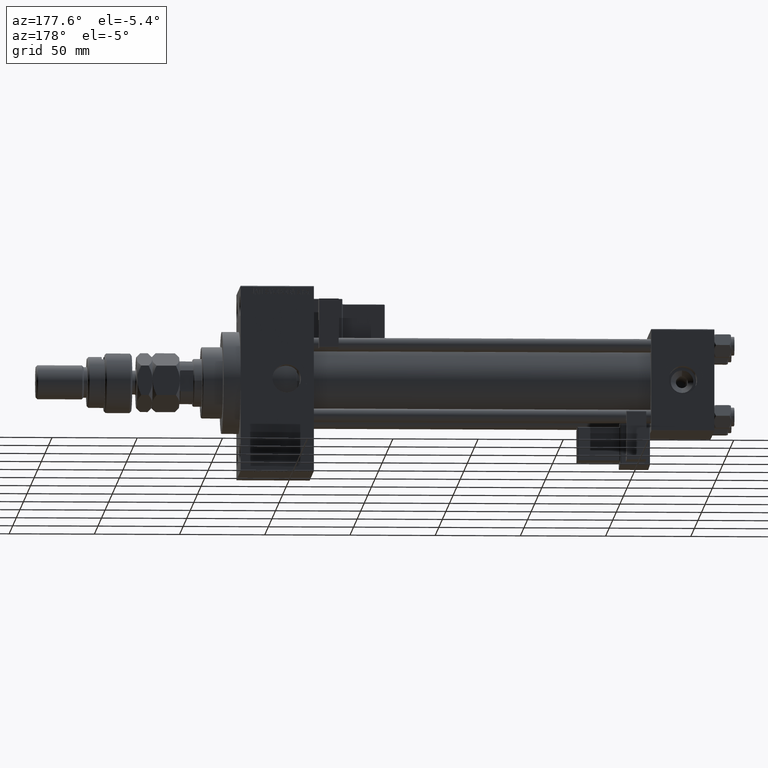
[diagram: clean part render]
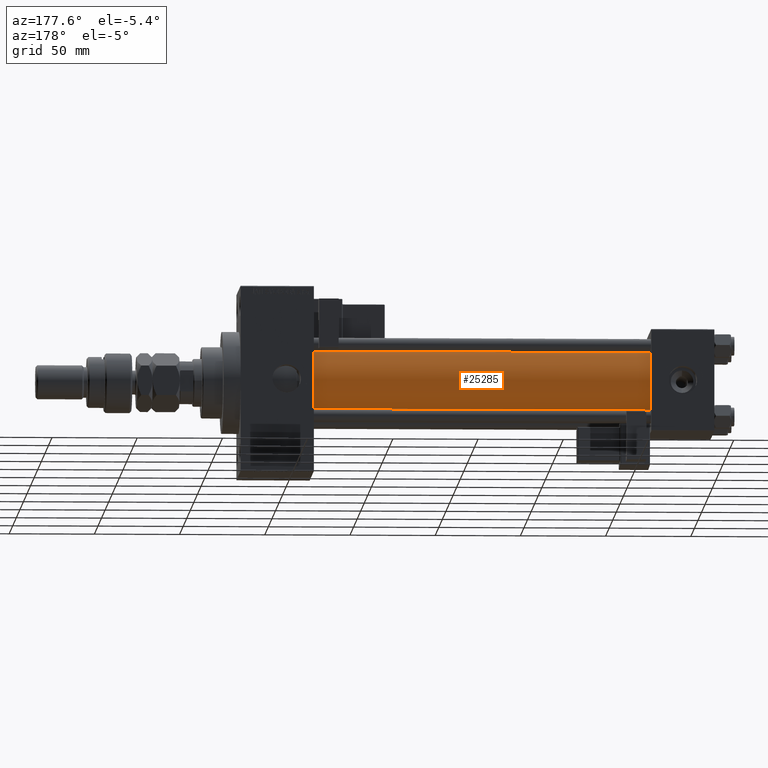
[diagram: same view with one face highlighted and labeled with its STEP entity id]
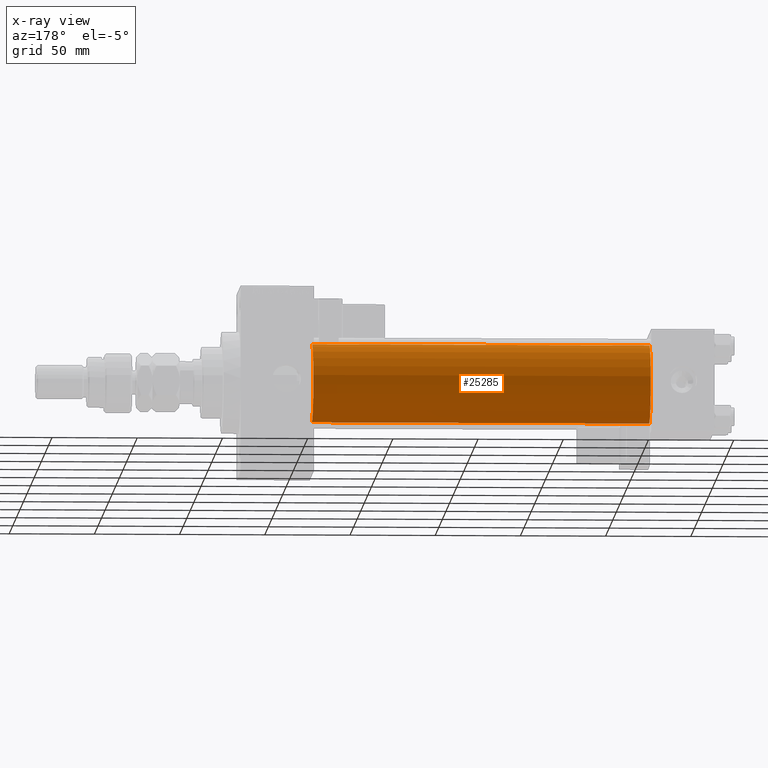
[diagram: x-ray of the same camera — body ghosted, the highlighted face saturated]
A machine part, auxiliary view. The second image highlights one B-rep face of the part: STEP entity #25285.
The next image is the same camera in x-ray: the body ghosted, the highlighted face saturated — about 0% of this face is hidden behind the body in this view.
In plain terms, the highlighted cylindrical surface (partial cylindrical patch) has radius 23 mm, axis along (-1, -0, -0).
Its self-contained STEP definition (entity closure, byte-faithful):
#2834 = EDGE_LOOP ( 'NONE', ( #35893, #15410, #26519, #19608 ) ) ;
#5850 = DIRECTION ( 'NONE',  ( -1.000000000000000000, -0.000000000000000000, -0.000000000000000000 ) ) ;
#7705 = CIRCLE ( 'NONE', #41034, 23.00000000000000000 ) ;
#9074 = CARTESIAN_POINT ( 'NONE',  ( 37.00000000000000711, 2.146024240737016609E-16, -23.00000000000000000 ) ) ;
#9772 = LINE ( 'NONE', #42755, #24658 ) ;
#10904 = CIRCLE ( 'NONE', #12661, 23.00000000000000000 ) ;
#11007 = CARTESIAN_POINT ( 'NONE',  ( 37.00000000000000711, -2.602085213965210642E-15, 23.00000000000000000 ) ) ;
#12124 = CYLINDRICAL_SURFACE ( 'NONE', #40105, 23.00000000000000000 ) ;
#12287 = CARTESIAN_POINT ( 'NONE',  ( 235.0000000000000284, 2.146024240737016609E-16, -23.00000000000000000 ) ) ;
#12661 = AXIS2_PLACEMENT_3D ( 'NONE', #48517, #53709, #49062 ) ;
#13613 = DIRECTION ( 'NONE',  ( -1.000000000000000000, -0.000000000000000000, -0.000000000000000000 ) ) ;
#15410 = ORIENTED_EDGE ( 'NONE', *, *, #49740, .T. ) ;
#19608 = ORIENTED_EDGE ( 'NONE', *, *, #21680, .F. ) ;
#20624 = FACE_OUTER_BOUND ( 'NONE', #2834, .T. ) ;
#21680 = EDGE_CURVE ( 'NONE', #52937, #38527, #9772, .T. ) ;
#23351 = CARTESIAN_POINT ( 'NONE',  ( 37.00000000000000711, -2.602085213965210642E-15, 0.000000000000000000 ) ) ;
#24658 = VECTOR ( 'NONE', #13613, 1000.000000000000000 ) ;
#25285 = ADVANCED_FACE ( 'NONE', ( #20624 ), #12124, .T. ) ;
#26174 = EDGE_CURVE ( 'NONE', #40913, #38527, #7705, .T. ) ;
#26519 = ORIENTED_EDGE ( 'NONE', *, *, #26174, .T. ) ;
#28612 = DIRECTION ( 'NONE',  ( -1.000000000000000000, -0.000000000000000000, -0.000000000000000000 ) ) ;
#30832 = CARTESIAN_POINT ( 'NONE',  ( 235.0000000000000284, 2.146024240737016609E-16, -23.00000000000000000 ) ) ;
#32455 = DIRECTION ( 'NONE',  ( 0.000000000000000000, 0.000000000000000000, 1.000000000000000000 ) ) ;
#35893 = ORIENTED_EDGE ( 'NONE', *, *, #43128, .F. ) ;
#38527 = VERTEX_POINT ( 'NONE', #11007 ) ;
#40105 = AXIS2_PLACEMENT_3D ( 'NONE', #54165, #28612, #32455 ) ;
#40125 = DIRECTION ( 'NONE',  ( 0.000000000000000000, 0.000000000000000000, 1.000000000000000000 ) ) ;
#40913 = VERTEX_POINT ( 'NONE', #9074 ) ;
#41034 = AXIS2_PLACEMENT_3D ( 'NONE', #23351, #53302, #40125 ) ;
#42755 = CARTESIAN_POINT ( 'NONE',  ( 235.0000000000000284, -2.602085213965210642E-15, 23.00000000000000000 ) ) ;
#43128 = EDGE_CURVE ( 'NONE', #53080, #52937, #10904, .T. ) ;
#44019 = LINE ( 'NONE', #30832, #44132 ) ;
#44132 = VECTOR ( 'NONE', #5850, 1000.000000000000000 ) ;
#48517 = CARTESIAN_POINT ( 'NONE',  ( 235.0000000000000284, -2.602085213965210642E-15, 0.000000000000000000 ) ) ;
#49062 = DIRECTION ( 'NONE',  ( 0.000000000000000000, 0.000000000000000000, -1.000000000000000000 ) ) ;
#49740 = EDGE_CURVE ( 'NONE', #53080, #40913, #44019, .T. ) ;
#51346 = CARTESIAN_POINT ( 'NONE',  ( 235.0000000000000284, -2.602085213965210642E-15, 23.00000000000000000 ) ) ;
#52937 = VERTEX_POINT ( 'NONE', #51346 ) ;
#53080 = VERTEX_POINT ( 'NONE', #12287 ) ;
#53302 = DIRECTION ( 'NONE',  ( 1.000000000000000000, -0.000000000000000000, 0.000000000000000000 ) ) ;
#53709 = DIRECTION ( 'NONE',  ( 1.000000000000000000, 0.000000000000000000, 0.000000000000000000 ) ) ;
#54165 = CARTESIAN_POINT ( 'NONE',  ( 235.0000000000000284, -2.602085213965210642E-15, 0.000000000000000000 ) ) ;